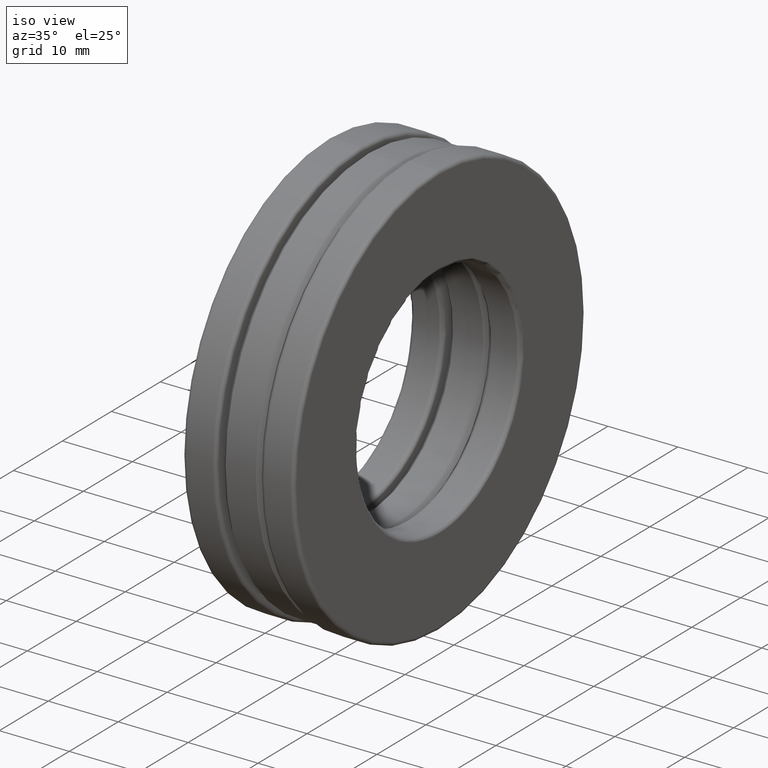
[diagram: clean part render]
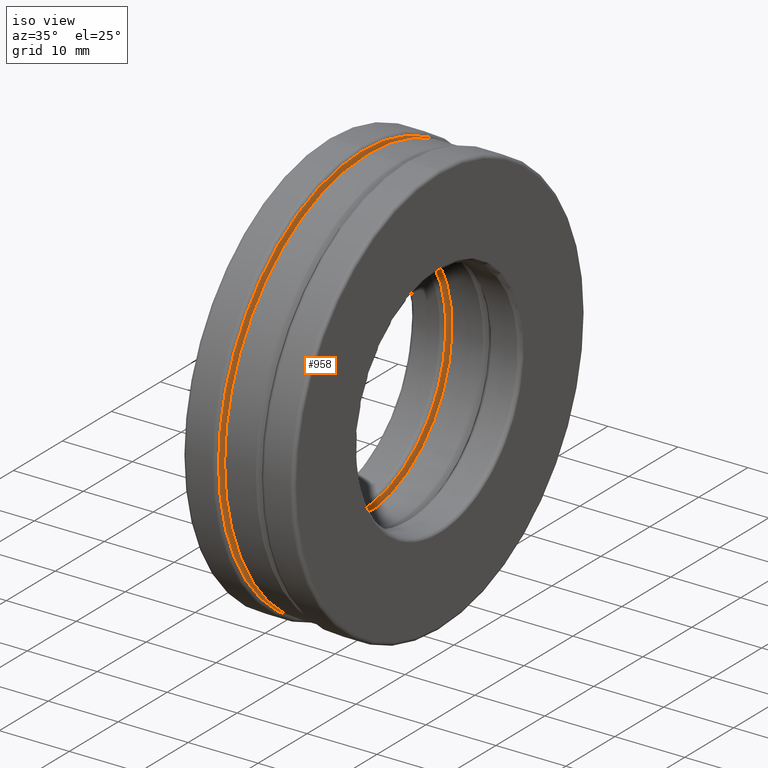
[diagram: same view with one face highlighted and labeled with its STEP entity id]
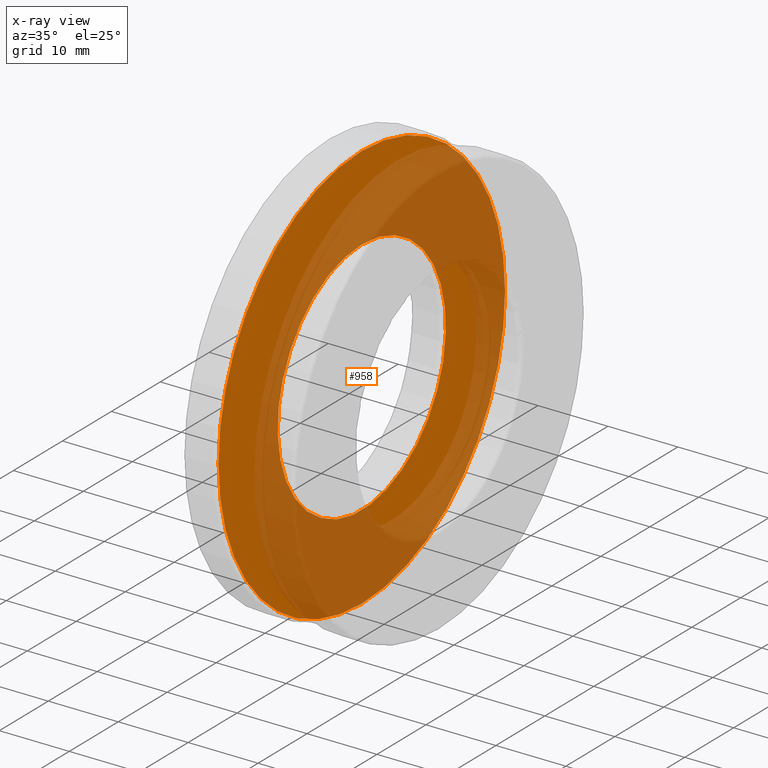
[diagram: x-ray of the same camera — body ghosted, the highlighted face saturated]
A machine part, iso view. The second image highlights one B-rep face of the part: STEP entity #958.
The next image is the same camera in x-ray: the body ghosted, the highlighted face saturated — about 60% of this face is hidden behind the body in this view.
In plain terms, the highlighted planar face has unit normal (1, 0, 0).
Its self-contained STEP definition (entity closure, byte-faithful):
#127 = EDGE_LOOP ( 'NONE', ( #1130 ) ) ;
#156 = AXIS2_PLACEMENT_3D ( 'NONE', #158, #501, #841 ) ;
#158 = CARTESIAN_POINT ( 'NONE',  ( -0.1250000000000000600, 0.0000000000000000000, 0.0000000000000000000 ) ) ;
#175 = VERTEX_POINT ( 'NONE', #860 ) ;
#184 = EDGE_CURVE ( 'NONE', #175, #175, #407, .T. ) ;
#238 = PLANE ( 'NONE',  #884 ) ;
#353 = CIRCLE ( 'NONE', #156, 1.151875000000000200 ) ;
#375 = EDGE_CURVE ( 'NONE', #1231, #1231, #353, .T. ) ;
#407 = CIRCLE ( 'NONE', #1193, 0.6762500000000000200 ) ;
#501 = DIRECTION ( 'NONE',  ( -1.000000000000000000, -0.0000000000000000000, -0.0000000000000000000 ) ) ;
#639 = DIRECTION ( 'NONE',  ( -1.000000000000000000, -0.0000000000000000000, -0.0000000000000000000 ) ) ;
#643 = EDGE_LOOP ( 'NONE', ( #1019 ) ) ;
#769 = DIRECTION ( 'NONE',  ( 0.0000000000000000000, 0.0000000000000000000, 1.000000000000000000 ) ) ;
#841 = DIRECTION ( 'NONE',  ( 0.0000000000000000000, 0.0000000000000000000, 1.000000000000000000 ) ) ;
#860 = CARTESIAN_POINT ( 'NONE',  ( -0.1250000000000000800, 0.0000000000000000000, 0.6762500000000000200 ) ) ;
#884 = AXIS2_PLACEMENT_3D ( 'NONE', #1360, #1039, #913 ) ;
#913 = DIRECTION ( 'NONE',  ( 0.0000000000000000000, 0.0000000000000000000, -1.000000000000000000 ) ) ;
#958 = ADVANCED_FACE ( 'NONE', ( #977, #1248 ), #238, .T. ) ;
#971 = CARTESIAN_POINT ( 'NONE',  ( -0.1250000000000000800, 0.0000000000000000000, 0.0000000000000000000 ) ) ;
#977 = FACE_BOUND ( 'NONE', #127, .T. ) ;
#1019 = ORIENTED_EDGE ( 'NONE', *, *, #375, .F. ) ;
#1039 = DIRECTION ( 'NONE',  ( 1.000000000000000000, 0.0000000000000000000, 0.0000000000000000000 ) ) ;
#1103 = CARTESIAN_POINT ( 'NONE',  ( -0.1250000000000000600, 0.0000000000000000000, 1.151875000000000200 ) ) ;
#1130 = ORIENTED_EDGE ( 'NONE', *, *, #184, .T. ) ;
#1193 = AXIS2_PLACEMENT_3D ( 'NONE', #971, #639, #769 ) ;
#1231 = VERTEX_POINT ( 'NONE', #1103 ) ;
#1248 = FACE_OUTER_BOUND ( 'NONE', #643, .T. ) ;
#1360 = CARTESIAN_POINT ( 'NONE',  ( -0.1250000000000000600, 4.487266743863772700E-018, 0.0000000000000000000 ) ) ;